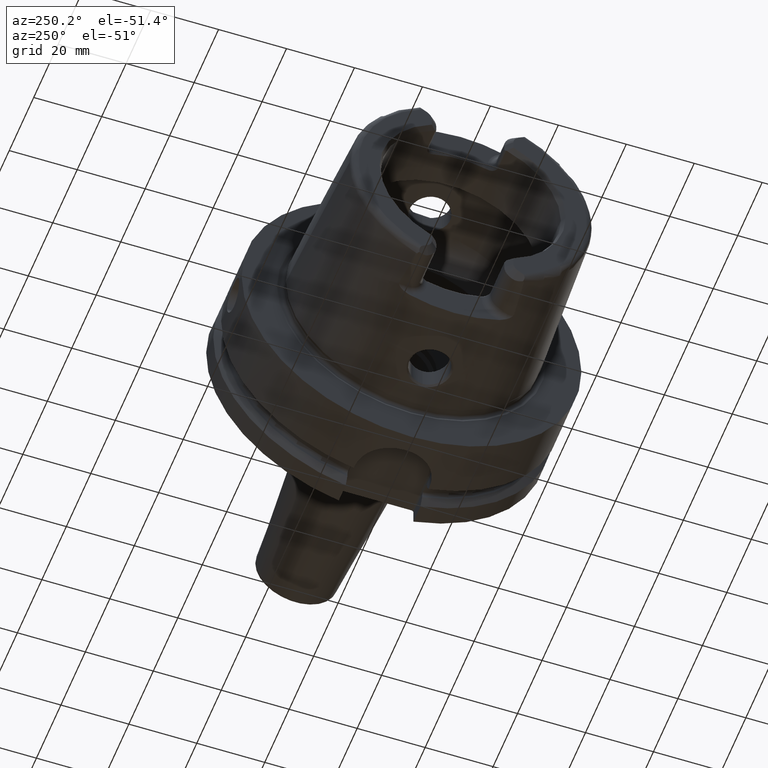
[diagram: clean part render]
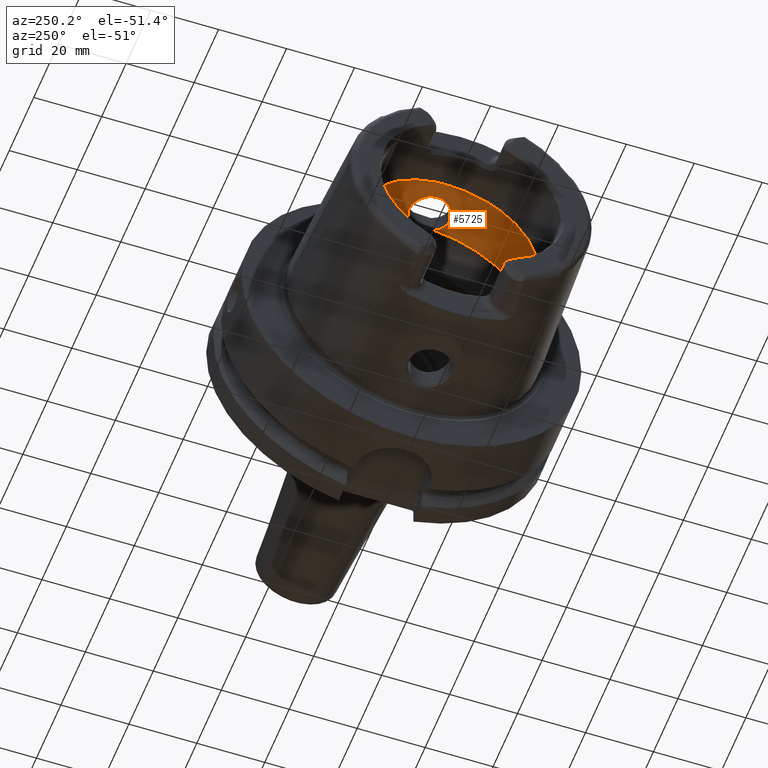
[diagram: same view with one face highlighted and labeled with its STEP entity id]
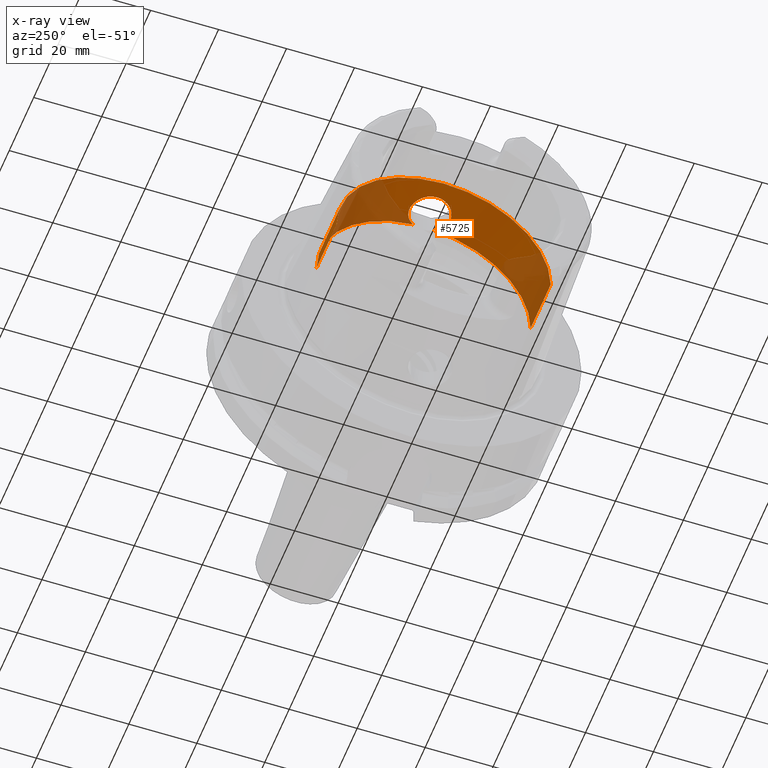
[diagram: x-ray of the same camera — body ghosted, the highlighted face saturated]
A machine part, auxiliary view. The second image highlights one B-rep face of the part: STEP entity #5725.
The next image is the same camera in x-ray: the body ghosted, the highlighted face saturated — about 41% of this face is hidden behind the body in this view.
In plain terms, the highlighted cylindrical surface (partial cylindrical patch) has radius 31.5 mm, axis along (1, 0, 0).
Its self-contained STEP definition (entity closure, byte-faithful):
#2069=CARTESIAN_POINT('',(-9.846794344809E0,3.073185883624E0,3.134972932139E1));
#2071=CARTESIAN_POINT('',(-9.846794344809E0,-3.073185883624E0,
3.134972932139E1));
#2085=CARTESIAN_POINT('',(-9.846794344809E0,3.073185883624E0,3.134972932139E1));
#2086=CARTESIAN_POINT('',(-9.979350610583E0,3.295460007053E0,3.132793998818E1));
#2087=CARTESIAN_POINT('',(-1.027063887730E1,3.719249728918E0,3.128166137702E1));
#2088=CARTESIAN_POINT('',(-1.079035808135E1,4.298920478732E0,3.120689190392E1));
#2089=CARTESIAN_POINT('',(-1.137898274965E1,4.805041081809E0,3.113254787077E1));
#2090=CARTESIAN_POINT('',(-1.202658779818E1,5.230450418473E0,3.106351678434E1));
#2091=CARTESIAN_POINT('',(-1.271973952812E1,5.567575114105E0,3.100453126817E1));
#2092=CARTESIAN_POINT('',(-1.345035493347E1,5.813488696578E0,3.095911024256E1));
#2093=CARTESIAN_POINT('',(-1.420764120587E1,5.964169161635E0,3.093027187856E1));
#2094=CARTESIAN_POINT('',(-1.497984446875E1,6.016521870398E0,3.092007259785E1));
#2095=CARTESIAN_POINT('',(-1.575309935594E1,5.969543750814E0,3.092922961197E1));
#2096=CARTESIAN_POINT('',(-1.652541066125E1,5.820717381311E0,3.095775345043E1));
#2097=CARTESIAN_POINT('',(-1.727341934717E1,5.571094163642E0,3.100391709528E1));
#2098=CARTESIAN_POINT('',(-1.797719195757E1,5.228690177102E0,3.106382935769E1));
#2099=CARTESIAN_POINT('',(-1.863207171596E1,4.797562142056E0,3.113375842146E1));
#2100=CARTESIAN_POINT('',(-1.923624043330E1,4.274224967480E0,3.121040427516E1));
#2101=CARTESIAN_POINT('',(-1.976613927382E1,3.673557002686E0,3.128721124755E1));
#2102=CARTESIAN_POINT('',(-2.020637808011E1,3.016563255921E0,3.135771603394E1));
#2103=CARTESIAN_POINT('',(-2.055582787998E1,2.311076998962E0,3.141795380196E1));
#2104=CARTESIAN_POINT('',(-2.081257397864E1,1.557663843048E0,3.146462805191E1));
#2105=CARTESIAN_POINT('',(-2.096662575255E1,7.779183163064E-1,
3.149361665994E1));
#2106=CARTESIAN_POINT('',(-2.1E1,2.599995876471E-1,3.15E1));
#2107=CARTESIAN_POINT('',(-2.1E1,0.E0,3.15E1));
#2109=CARTESIAN_POINT('',(-9.846794344809E0,0.E0,0.E0));
#2110=DIRECTION('',(1.E0,0.E0,0.E0));
#2111=DIRECTION('',(0.E0,1.E0,0.E0));
#2112=AXIS2_PLACEMENT_3D('',#2109,#2110,#2111);
#2114=CARTESIAN_POINT('',(-9.846794344809E0,0.E0,0.E0));
#2115=DIRECTION('',(1.E0,0.E0,0.E0));
#2116=DIRECTION('',(0.E0,-9.756145662299E-2,9.952295022665E-1));
#2117=AXIS2_PLACEMENT_3D('',#2114,#2115,#2116);
#2119=CARTESIAN_POINT('',(-2.1E1,0.E0,3.15E1));
#2120=CARTESIAN_POINT('',(-2.1E1,-2.571227322628E-1,3.15E1));
#2121=CARTESIAN_POINT('',(-2.096736472421E1,-7.693984126219E-1,
3.149375838501E1));
#2122=CARTESIAN_POINT('',(-2.081659080202E1,-1.541049857093E0,
3.146537963405E1));
#2123=CARTESIAN_POINT('',(-2.056550243220E1,-2.286682308644E0,
3.141968549161E1));
#2124=CARTESIAN_POINT('',(-2.022340587255E1,-2.986151195866E0,
3.136058293097E1));
#2125=CARTESIAN_POINT('',(-1.979326828629E1,-3.637340617479E0,
3.129140992251E1));
#2126=CARTESIAN_POINT('',(-1.927478905529E1,-4.235071698102E0,
3.121573223434E1));
#2127=CARTESIAN_POINT('',(-1.868247740736E1,-4.758599460883E0,
3.113974969594E1));
#2128=CARTESIAN_POINT('',(-1.803686661027E1,-5.194005287447E0,
3.106967109408E1));
#2129=CARTESIAN_POINT('',(-1.734161583992E1,-5.542612510908E0,
3.100904668501E1));
#2130=CARTESIAN_POINT('',(-1.659831672384E1,-5.801097428712E0,
3.096145823760E1));
#2131=CARTESIAN_POINT('',(-1.582796267308E1,-5.959654019058E0,
3.093114785940E1));
#2132=CARTESIAN_POINT('',(-1.505461105168E1,-6.016295452388E0,
3.092011677740E1));
#2133=CARTESIAN_POINT('',(-1.428037054876E1,-5.973681036842E0,
3.092842594800E1));
#2134=CARTESIAN_POINT('',(-1.350797364848E1,-5.829331845562E0,
3.095612333536E1));
#2135=CARTESIAN_POINT('',(-1.275967231567E1,-5.584336729774E0,
3.100151619127E1));
#2136=CARTESIAN_POINT('',(-1.205825931241E1,-5.248465876117E0,
3.106046672590E1));
#2137=CARTESIAN_POINT('',(-1.140515180586E1,-4.825059400574E0,
3.112945635419E1));
#2138=CARTESIAN_POINT('',(-1.080442776173E1,-4.313579447853E0,
3.120492076547E1));
#2139=CARTESIAN_POINT('',(-1.027427619122E1,-3.724621952008E0,
3.128107616940E1));
#2140=CARTESIAN_POINT('',(-9.980265351482E0,-3.296993870656E0,
3.132778962490E1));
#2141=CARTESIAN_POINT('',(-9.846794344809E0,-3.073185883624E0,
3.134972932139E1));
#2196=DIRECTION('',(-1.E0,0.E0,0.E0));
#2197=VECTOR('',#2196,1.640380457843E1);
#2198=CARTESIAN_POINT('',(-9.846794344809E0,-3.15E1,0.E0));
#2199=LINE('',#2198,#2197);
#2200=DIRECTION('',(-1.E0,0.E0,0.E0));
#2201=VECTOR('',#2200,1.640380457843E1);
#2202=CARTESIAN_POINT('',(-9.846794344809E0,3.15E1,0.E0));
#2203=LINE('',#2202,#2201);
#2453=CARTESIAN_POINT('',(-2.625059892324E1,0.E0,0.E0));
#2454=DIRECTION('',(1.E0,0.E0,0.E0));
#2455=DIRECTION('',(0.E0,1.E0,0.E0));
#2456=AXIS2_PLACEMENT_3D('',#2453,#2454,#2455);
#2735=CARTESIAN_POINT('',(-9.846794344809E0,3.15E1,0.E0));
#2736=VERTEX_POINT('',#2735);
#2737=CARTESIAN_POINT('',(-2.625059892324E1,3.15E1,0.E0));
#2738=VERTEX_POINT('',#2737);
#2747=CARTESIAN_POINT('',(-9.846794344809E0,-3.15E1,0.E0));
#2748=VERTEX_POINT('',#2747);
#2749=CARTESIAN_POINT('',(-2.625059892324E1,-3.15E1,0.E0));
#2750=VERTEX_POINT('',#2749);
#2915=VERTEX_POINT('',#2069);
#2916=VERTEX_POINT('',#2071);
#2917=VERTEX_POINT('',#2107);
#5708=CARTESIAN_POINT('',(-5.3125E1,0.E0,0.E0));
#5709=DIRECTION('',(1.E0,0.E0,0.E0));
#5710=DIRECTION('',(0.E0,-1.E0,0.E0));
#5711=AXIS2_PLACEMENT_3D('',#5708,#5709,#5710);
#5712=CYLINDRICAL_SURFACE('',#5711,3.15E1);
#5713=ORIENTED_EDGE('',*,*,#5667,.F.);
#5714=ORIENTED_EDGE('',*,*,#5703,.F.);
#5716=ORIENTED_EDGE('',*,*,#5715,.T.);
#5718=ORIENTED_EDGE('',*,*,#5717,.T.);
#5720=ORIENTED_EDGE('',*,*,#5719,.F.);
#5721=ORIENTED_EDGE('',*,*,#5695,.F.);
#5722=ORIENTED_EDGE('',*,*,#5389,.F.);
#5723=EDGE_LOOP('',(#5713,#5714,#5716,#5718,#5720,#5721,#5722));
#5724=FACE_OUTER_BOUND('',#5723,.F.);
#5725=ADVANCED_FACE('',(#5724),#5712,.F.);
#2108=B_SPLINE_CURVE_WITH_KNOTS('',3,(#2085,#2086,#2087,#2088,#2089,#2090,#2091,
#2092,#2093,#2094,#2095,#2096,#2097,#2098,#2099,#2100,#2101,#2102,#2103,#2104,
#2105,#2106,#2107),.UNSPECIFIED.,.F.,.F.,(4,1,1,1,1,1,1,1,1,1,1,1,1,1,1,1,1,1,1,
1,4),(0.E0,5.E-2,1.E-1,1.5E-1,2.E-1,2.5E-1,3.E-1,3.5E-1,4.E-1,4.5E-1,5.E-1,
5.5E-1,6.E-1,6.5E-1,7.E-1,7.5E-1,8.E-1,8.5E-1,9.E-1,9.5E-1,1.E0),.UNSPECIFIED.);
#2113=CIRCLE('',#2112,3.15E1);
#2118=CIRCLE('',#2117,3.15E1);
#2142=B_SPLINE_CURVE_WITH_KNOTS('',3,(#2119,#2120,#2121,#2122,#2123,#2124,#2125,
#2126,#2127,#2128,#2129,#2130,#2131,#2132,#2133,#2134,#2135,#2136,#2137,#2138,
#2139,#2140,#2141),.UNSPECIFIED.,.F.,.F.,(4,1,1,1,1,1,1,1,1,1,1,1,1,1,1,1,1,1,1,
1,4),(0.E0,5.E-2,1.E-1,1.5E-1,2.E-1,2.5E-1,3.E-1,3.5E-1,4.E-1,4.5E-1,5.E-1,
5.5E-1,6.E-1,6.5E-1,7.E-1,7.5E-1,8.E-1,8.5E-1,9.E-1,9.5E-1,1.E0),.UNSPECIFIED.);
#2457=CIRCLE('',#2456,3.15E1);
#5389=EDGE_CURVE('',#2917,#2916,#2142,.T.);
#5667=EDGE_CURVE('',#2915,#2917,#2108,.T.);
#5695=EDGE_CURVE('',#2916,#2748,#2118,.T.);
#5703=EDGE_CURVE('',#2736,#2915,#2113,.T.);
#5715=EDGE_CURVE('',#2736,#2738,#2203,.T.);
#5717=EDGE_CURVE('',#2738,#2750,#2457,.T.);
#5719=EDGE_CURVE('',#2748,#2750,#2199,.T.);